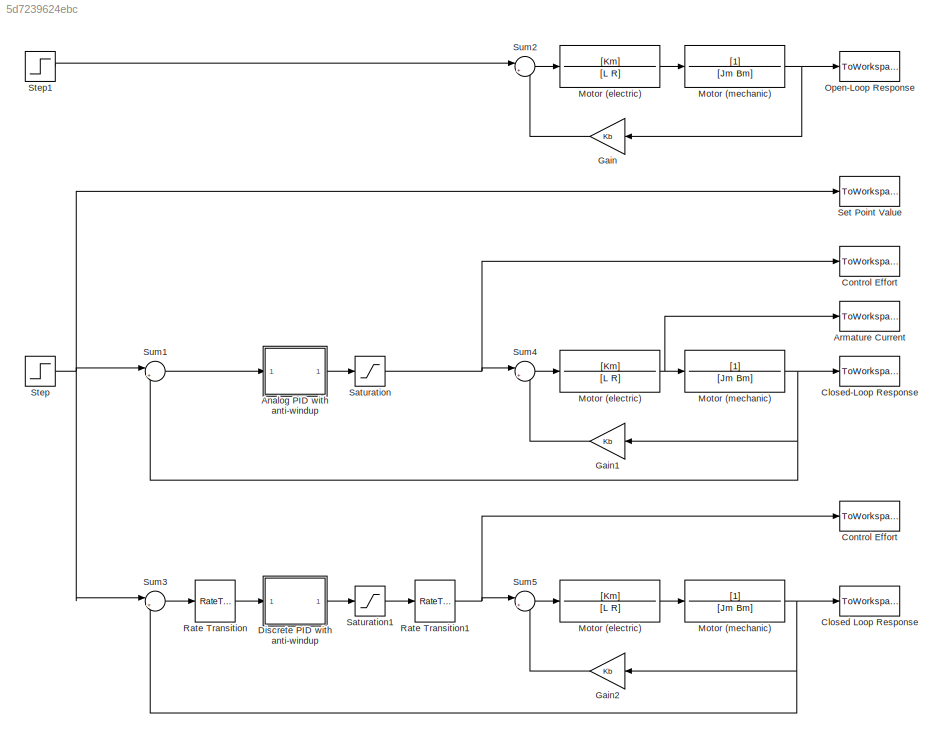
MODEL slx_5d7239624ebc
KIND model
CONFIG AbsTol = auto
CONFIG EnableMultiTasking = on
CONFIG FixedStep = TsSim
CONFIG InitFcn = pid_init
CONFIG MaxStep = auto
CONFIG MinStep = auto
CONFIG RelTol = 1e-6
CONFIG SampleTimeConstraint = Unconstrained
CONFIG SolverName = FixedStepAuto
CONFIG StartTime = 0.0
CONFIG StopFcn = pid_plot
CONFIG StopTime = tTot
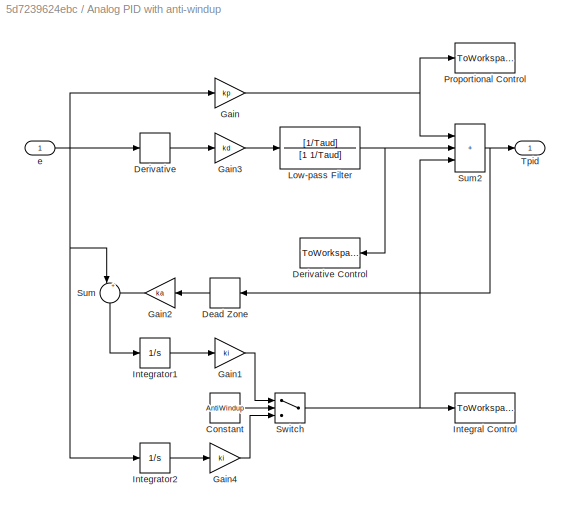
BLOCK [SubSystem] Analog PID with anti-windup
  Ports = [1, 1]
  RequestExecContextInheritance = off
BLOCK [Constant] Analog PID with anti-windup/Constant
  Value = AntiWindup
BLOCK [DeadZone] Analog PID with anti-windup/Dead Zone
  LowerValue = umin
  UpperValue = umax
  ZeroCross = off
BLOCK [Derivative] Analog PID with anti-windup/Derivative
BLOCK [ToWorkspace] Analog PID with anti-windup/Derivative Control
  MaxDataPoints = inf
  NameLocation = top
  Ports = [1]
  VariableName = ud
BLOCK [Gain] Analog PID with anti-windup/Gain
  Gain = kp
BLOCK [Gain] Analog PID with anti-windup/Gain1
  Gain = ki
BLOCK [Gain] Analog PID with anti-windup/Gain2
  Gain = ka
BLOCK [Gain] Analog PID with anti-windup/Gain3
  Gain = kd
BLOCK [Gain] Analog PID with anti-windup/Gain4
  Gain = ki
BLOCK [ToWorkspace] Analog PID with anti-windup/Integral Control
  MaxDataPoints = inf
  Ports = [1]
  VariableName = ui
BLOCK [Integrator] Analog PID with anti-windup/Integrator1
  Ports = [1, 1]
BLOCK [Integrator] Analog PID with anti-windup/Integrator2
  Ports = [1, 1]
BLOCK [TransferFcn] Analog PID with anti-windup/Low-pass Filter
  Denominator = [1 1/Taud]
  Numerator = [1/Taud]
BLOCK [ToWorkspace] Analog PID with anti-windup/Proportional Control
  MaxDataPoints = inf
  Ports = [1]
  VariableName = up
BLOCK [Sum] Analog PID with anti-windup/Sum
  Inputs = |+-
  NameLocation = left
  Ports = [2, 1]
BLOCK [Sum] Analog PID with anti-windup/Sum2
  IconShape = rectangular
  Inputs = +++
  Ports = [3, 1]
BLOCK [Switch] Analog PID with anti-windup/Switch
  Criteria = u2 > Threshold
  InputSameDT = off
  SaturateOnIntegerOverflow = off
BLOCK [Outport] Analog PID with anti-windup/Tpid
BLOCK [Inport] Analog PID with anti-windup/e
BLOCK [ToWorkspace] Armature Current
  MaxDataPoints = inf
  Ports = [1]
  SampleTime = -1
  VariableName = iCL
BLOCK [ToWorkspace] Closed Loop Response 
  MaxDataPoints = inf
  Ports = [1]
  SampleTime = -1
  VariableName = xCLd
BLOCK [ToWorkspace] Closed-Loop Response
  MaxDataPoints = inf
  Ports = [1]
  SampleTime = -1
  VariableName = xCL
BLOCK [ToWorkspace] Control Effort
  MaxDataPoints = inf
  Ports = [1]
  SampleTime = -1
  VariableName = uCL
BLOCK [ToWorkspace] Control Effort 
  MaxDataPoints = inf
  Ports = [1]
  SampleTime = -1
  VariableName = uCLd
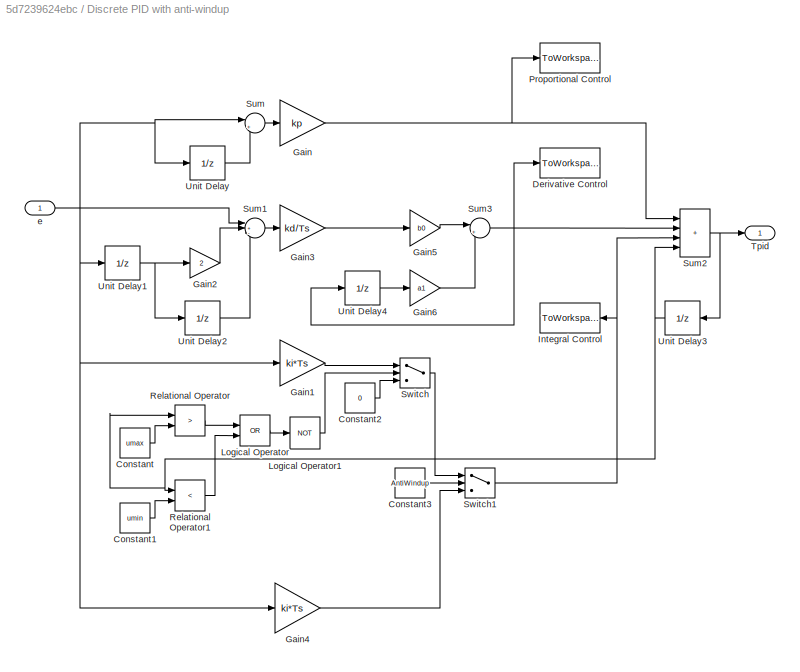
BLOCK [SubSystem] Discrete PID with anti-windup
  Ports = [1, 1]
  RequestExecContextInheritance = off
BLOCK [Constant] Discrete PID with anti-windup/Constant
  Value = umax
BLOCK [Constant] Discrete PID with anti-windup/Constant1
  Value = umin
BLOCK [Constant] Discrete PID with anti-windup/Constant2
  Value = 0
BLOCK [Constant] Discrete PID with anti-windup/Constant3
  Value = AntiWindup
BLOCK [ToWorkspace] Discrete PID with anti-windup/Derivative Control
  MaxDataPoints = inf
  Ports = [1]
  SampleTime = -1
  VariableName = udd
BLOCK [Gain] Discrete PID with anti-windup/Gain
  Gain = kp
BLOCK [Gain] Discrete PID with anti-windup/Gain1
  Gain = ki*Ts
BLOCK [Gain] Discrete PID with anti-windup/Gain2
  Gain = 2
BLOCK [Gain] Discrete PID with anti-windup/Gain3
  Gain = kd/Ts
BLOCK [Gain] Discrete PID with anti-windup/Gain4
  Gain = ki*Ts
BLOCK [Gain] Discrete PID with anti-windup/Gain5
  Gain = b0
BLOCK [Gain] Discrete PID with anti-windup/Gain6
  Gain = a1
BLOCK [ToWorkspace] Discrete PID with anti-windup/Integral Control
  MaxDataPoints = inf
  NameLocation = top
  Ports = [1]
  SampleTime = -1
  VariableName = uid
BLOCK [Logic] Discrete PID with anti-windup/Logical Operator
  AllPortsSameDT = off
  Operator = OR
  OutDataTypeStr = boolean
  Ports = [2, 1]
BLOCK [Logic] Discrete PID with anti-windup/Logical Operator1
  AllPortsSameDT = off
  Operator = NOT
  OutDataTypeStr = boolean
  Ports = [1, 1]
BLOCK [ToWorkspace] Discrete PID with anti-windup/Proportional Control
  MaxDataPoints = inf
  Ports = [1]
  SampleTime = -1
  VariableName = upd
BLOCK [RelationalOperator] Discrete PID with anti-windup/Relational Operator
  InputSameDT = off
  Operator = >
  OutDataTypeStr = boolean
  Ports = [2, 1]
BLOCK [RelationalOperator] Discrete PID with anti-windup/Relational Operator1
  InputSameDT = off
  Operator = <
  OutDataTypeStr = boolean
  Ports = [2, 1]
BLOCK [Sum] Discrete PID with anti-windup/Sum
  Inputs = |+-
  Ports = [2, 1]
BLOCK [Sum] Discrete PID with anti-windup/Sum1
  Inputs = |+-+
  Ports = [3, 1]
BLOCK [Sum] Discrete PID with anti-windup/Sum2
  IconShape = rectangular
  Inputs = ++++
  Ports = [4, 1]
BLOCK [Sum] Discrete PID with anti-windup/Sum3
  Inputs = |++
  Ports = [2, 1]
BLOCK [Switch] Discrete PID with anti-windup/Switch
  Criteria = u2 > Threshold
  InputSameDT = off
  SaturateOnIntegerOverflow = off
BLOCK [Switch] Discrete PID with anti-windup/Switch1
  Criteria = u2 > Threshold
  InputSameDT = off
  SaturateOnIntegerOverflow = off
BLOCK [Outport] Discrete PID with anti-windup/Tpid
BLOCK [UnitDelay] Discrete PID with anti-windup/Unit Delay
  HasFrameUpgradeWarning = on
  SampleTime = -1
BLOCK [UnitDelay] Discrete PID with anti-windup/Unit Delay1
  HasFrameUpgradeWarning = on
  SampleTime = -1
BLOCK [UnitDelay] Discrete PID with anti-windup/Unit Delay2
  HasFrameUpgradeWarning = on
  SampleTime = -1
BLOCK [UnitDelay] Discrete PID with anti-windup/Unit Delay3
  HasFrameUpgradeWarning = on
  NameLocation = top
  SampleTime = -1
BLOCK [UnitDelay] Discrete PID with anti-windup/Unit Delay4
  HasFrameUpgradeWarning = on
  SampleTime = -1
BLOCK [Inport] Discrete PID with anti-windup/e
BLOCK [Gain] Gain
  Gain = Kb
  NameLocation = top
BLOCK [Gain] Gain1
  Gain = Kb
  NameLocation = top
BLOCK [Gain] Gain2
  Gain = Kb
  NameLocation = top
BLOCK [TransferFcn] Motor (electric)
  Denominator = [L R]
  Numerator = [Km]
BLOCK [TransferFcn] Motor (electric) 
  Denominator = [L R]
  Numerator = [Km]
BLOCK [TransferFcn] Motor (electric)  
  Denominator = [L R]
  Numerator = [Km]
BLOCK [TransferFcn] Motor (mechanic)
  Denominator = [Jm Bm]
BLOCK [TransferFcn] Motor (mechanic) 
  Denominator = [Jm Bm]
BLOCK [TransferFcn] Motor (mechanic)  
  Denominator = [Jm Bm]
BLOCK [ToWorkspace] Open-Loop Response
  MaxDataPoints = inf
  Ports = [1]
  SampleTime = -1
  VariableName = xOL
BLOCK [RateTransition] Rate Transition
  OutPortSampleTime = Ts
BLOCK [RateTransition] Rate Transition1
BLOCK [Saturate] Saturation
  LowerLimit = umin
  UpperLimit = umax
  ZeroCross = off
BLOCK [Saturate] Saturation1
  LowerLimit = umin
  UpperLimit = umax
BLOCK [ToWorkspace] Set Point Value
  MaxDataPoints = inf
  Ports = [1]
  SampleTime = -1
  VariableName = xSP
BLOCK [Step] Step
  After = xStep
  SampleTime = 0
  Time = 0.1
BLOCK [Step] Step1
  After = xStep/(Km/(R*Bm+Kb*Km))
  SampleTime = 0
  Time = 0.1
BLOCK [Sum] Sum1
  Inputs = |+-
  Ports = [2, 1]
BLOCK [Sum] Sum2
  Inputs = |+-
  Ports = [2, 1]
BLOCK [Sum] Sum3
  Inputs = |+-
  Ports = [2, 1]
BLOCK [Sum] Sum4
  Inputs = |+-
  Ports = [2, 1]
BLOCK [Sum] Sum5
  Inputs = |+-
  Ports = [2, 1]
LINE Analog PID with anti-windup/Constant:1 -> Analog PID with anti-windup/Switch:2
LINE Analog PID with anti-windup/Dead Zone:1 -> Analog PID with anti-windup/Gain2:1
LINE Analog PID with anti-windup/Derivative:1 -> Analog PID with anti-windup/Gain3:1
LINE Analog PID with anti-windup/Gain1:1 -> Analog PID with anti-windup/Switch:1
LINE Analog PID with anti-windup/Gain2:1 -> Analog PID with anti-windup/Sum:2
LINE Analog PID with anti-windup/Gain3:1 -> Analog PID with anti-windup/Low-pass Filter:1
LINE Analog PID with anti-windup/Gain4:1 -> Analog PID with anti-windup/Switch:3
NET Analog PID with anti-windup/Gain:1 -> Analog PID with anti-windup/Proportional Control:1, Analog PID with anti-windup/Sum2:1
LINE Analog PID with anti-windup/Integrator1:1 -> Analog PID with anti-windup/Gain1:1
LINE Analog PID with anti-windup/Integrator2:1 -> Analog PID with anti-windup/Gain4:1
NET Analog PID with anti-windup/Low-pass Filter:1 -> Analog PID with anti-windup/Derivative Control:1, Analog PID with anti-windup/Sum2:2
NET Analog PID with anti-windup/Sum2:1 -> Analog PID with anti-windup/Dead Zone:1, Analog PID with anti-windup/Tpid:1
LINE Analog PID with anti-windup/Sum:1 -> Analog PID with anti-windup/Integrator1:1
NET Analog PID with anti-windup/Switch:1 -> Analog PID with anti-windup/Integral Control:1, Analog PID with anti-windup/Sum2:3
NET Analog PID with anti-windup/e:1 -> Analog PID with anti-windup/Derivative:1, Analog PID with anti-windup/Gain:1, Analog PID with anti-windup/Integrator2:1, Analog PID with anti-windup/Sum:1
LINE Analog PID with anti-windup:1 -> Saturation:1
LINE Discrete PID with anti-windup/Constant1:1 -> Discrete PID with anti-windup/Relational Operator1:2
LINE Discrete PID with anti-windup/Constant2:1 -> Discrete PID with anti-windup/Switch:3
LINE Discrete PID with anti-windup/Constant3:1 -> Discrete PID with anti-windup/Switch1:2
LINE Discrete PID with anti-windup/Constant:1 -> Discrete PID with anti-windup/Relational Operator:2
LINE Discrete PID with anti-windup/Gain1:1 -> Discrete PID with anti-windup/Switch:1
LINE Discrete PID with anti-windup/Gain2:1 -> Discrete PID with anti-windup/Sum1:2
LINE Discrete PID with anti-windup/Gain3:1 -> Discrete PID with anti-windup/Gain5:1
LINE Discrete PID with anti-windup/Gain4:1 -> Discrete PID with anti-windup/Switch1:3
LINE Discrete PID with anti-windup/Gain5:1 -> Discrete PID with anti-windup/Sum3:1
LINE Discrete PID with anti-windup/Gain6:1 -> Discrete PID with anti-windup/Sum3:2
NET Discrete PID with anti-windup/Gain:1 -> Discrete PID with anti-windup/Proportional Control:1, Discrete PID with anti-windup/Sum2:1
LINE Discrete PID with anti-windup/Logical Operator1:1 -> Discrete PID with anti-windup/Switch:2
LINE Discrete PID with anti-windup/Logical Operator:1 -> Discrete PID with anti-windup/Logical Operator1:1
LINE Discrete PID with anti-windup/Relational Operator1:1 -> Discrete PID with anti-windup/Logical Operator:2
LINE Discrete PID with anti-windup/Relational Operator:1 -> Discrete PID with anti-windup/Logical Operator:1
LINE Discrete PID with anti-windup/Sum1:1 -> Discrete PID with anti-windup/Gain3:1
NET Discrete PID with anti-windup/Sum2:1 -> Discrete PID with anti-windup/Tpid:1, Discrete PID with anti-windup/Unit Delay3:1
NET Discrete PID with anti-windup/Sum3:1 -> Discrete PID with anti-windup/Derivative Control:1, Discrete PID with anti-windup/Sum2:2, Discrete PID with anti-windup/Unit Delay4:1
LINE Discrete PID with anti-windup/Sum:1 -> Discrete PID with anti-windup/Gain:1
NET Discrete PID with anti-windup/Switch1:1 -> Discrete PID with anti-windup/Integral Control:1, Discrete PID with anti-windup/Sum2:3
LINE Discrete PID with anti-windup/Switch:1 -> Discrete PID with anti-windup/Switch1:1
NET Discrete PID with anti-windup/Unit Delay1:1 -> Discrete PID with anti-windup/Gain2:1, Discrete PID with anti-windup/Unit Delay2:1
LINE Discrete PID with anti-windup/Unit Delay2:1 -> Discrete PID with anti-windup/Sum1:3
NET Discrete PID with anti-windup/Unit Delay3:1 -> Discrete PID with anti-windup/Relational Operator1:1, Discrete PID with anti-windup/Relational Operator:1, Discrete PID with anti-windup/Sum2:4
LINE Discrete PID with anti-windup/Unit Delay4:1 -> Discrete PID with anti-windup/Gain6:1
LINE Discrete PID with anti-windup/Unit Delay:1 -> Discrete PID with anti-windup/Sum:2
NET Discrete PID with anti-windup/e:1 -> Discrete PID with anti-windup/Gain1:1, Discrete PID with anti-windup/Gain4:1, Discrete PID with anti-windup/Sum1:1, Discrete PID with anti-windup/Sum:1, Discrete PID with anti-windup/Unit Delay1:1, Discrete PID with anti-windup/Unit Delay:1
LINE Discrete PID with anti-windup:1 -> Saturation1:1
LINE Gain1:1 -> Sum4:2
LINE Gain2:1 -> Sum5:2
LINE Gain:1 -> Sum2:2
LINE Motor (electric)  :1 -> Motor (mechanic)  :1
NET Motor (electric) :1 -> Armature Current:1, Motor (mechanic) :1
LINE Motor (electric):1 -> Motor (mechanic):1
NET Motor (mechanic)  :1 -> Closed Loop Response :1, Gain2:1, Sum3:2
NET Motor (mechanic) :1 -> Closed-Loop Response:1, Gain1:1, Sum1:2
NET Motor (mechanic):1 -> Gain:1, Open-Loop Response:1
NET Rate Transition1:1 -> Control Effort :1, Sum5:1
LINE Rate Transition:1 -> Discrete PID with anti-windup:1
LINE Saturation1:1 -> Rate Transition1:1
NET Saturation:1 -> Control Effort:1, Sum4:1
LINE Step1:1 -> Sum2:1
NET Step:1 -> Set Point Value:1, Sum1:1, Sum3:1
LINE Sum1:1 -> Analog PID with anti-windup:1
LINE Sum2:1 -> Motor (electric):1
LINE Sum3:1 -> Rate Transition:1
LINE Sum4:1 -> Motor (electric) :1
LINE Sum5:1 -> Motor (electric)  :1
note: NET lines group one-source signal fan-out (src -> all destinations, sorted); 1:1 wires keep LINE
